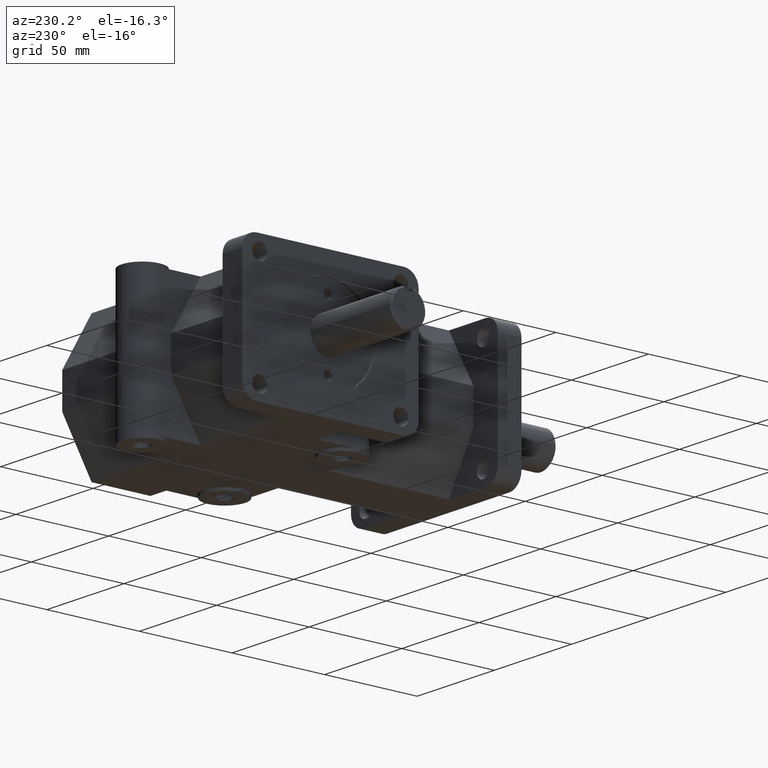
[diagram: clean part render]
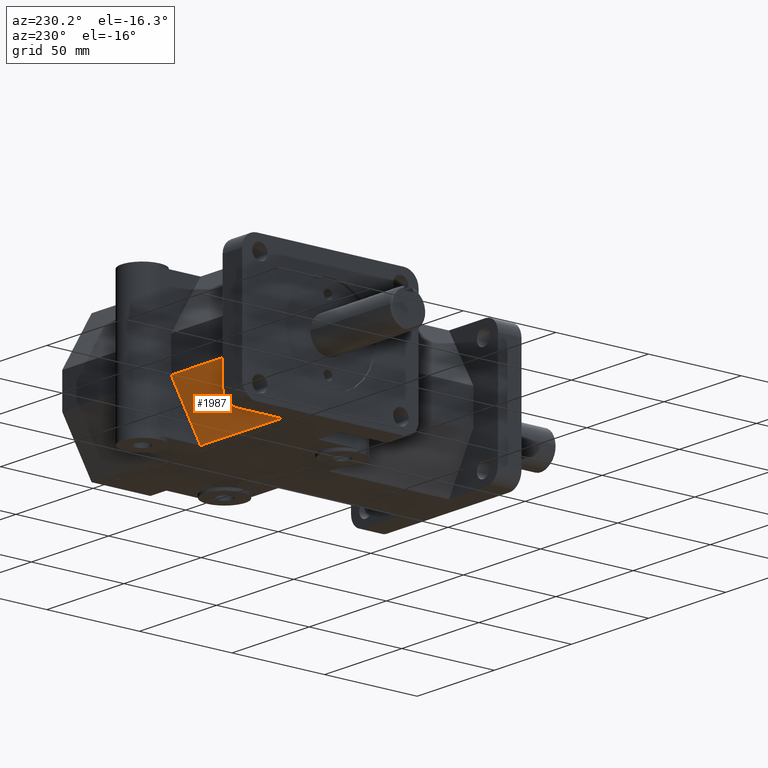
[diagram: same view with one face highlighted and labeled with its STEP entity id]
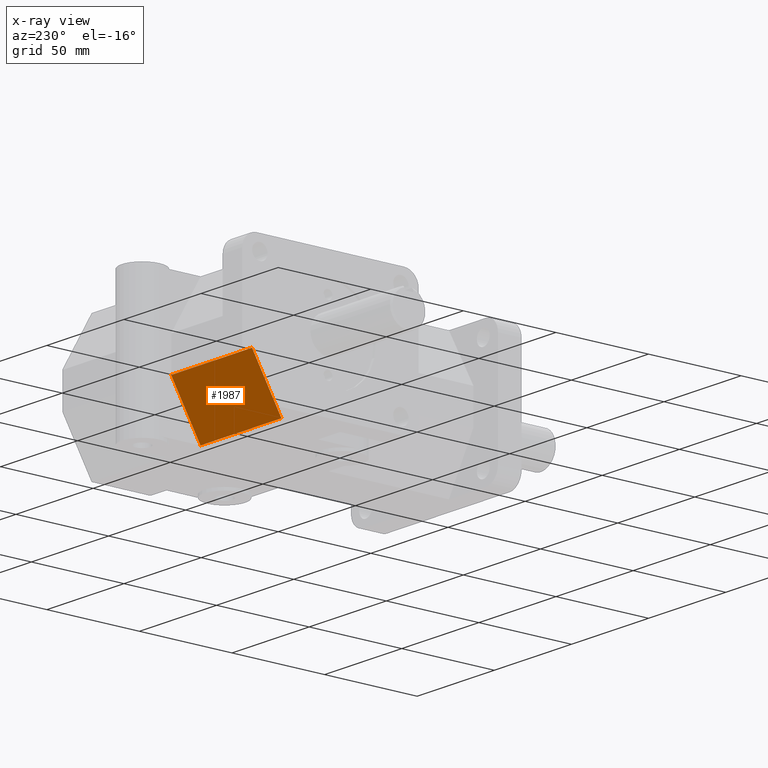
[diagram: x-ray of the same camera — body ghosted, the highlighted face saturated]
A machine part, auxiliary view. The second image highlights one B-rep face of the part: STEP entity #1987.
The next image is the same camera in x-ray: the body ghosted, the highlighted face saturated — about 5% of this face is hidden behind the body in this view.
In plain terms, the highlighted planar face has unit normal (0, 0.866, -0.5).
Its self-contained STEP definition (entity closure, byte-faithful):
#44=LINE('',#2931,#235);
#75=LINE('',#3012,#266);
#184=LINE('',#3322,#375);
#185=LINE('',#3323,#376);
#235=VECTOR('',#2344,1.);
#266=VECTOR('',#2409,1.);
#375=VECTOR('',#2706,1.);
#376=VECTOR('',#2707,1.);
#550=FACE_OUTER_BOUND('',#686,.T.);
#686=EDGE_LOOP('',(#1676,#1677,#1678,#1679));
#862=VERTEX_POINT('',#2928);
#863=VERTEX_POINT('',#2930);
#896=VERTEX_POINT('',#3011);
#991=VERTEX_POINT('',#3321);
#1051=EDGE_CURVE('',#863,#862,#44,.F.);
#1095=EDGE_CURVE('',#896,#863,#75,.T.);
#1244=EDGE_CURVE('',#991,#896,#184,.F.);
#1245=EDGE_CURVE('',#862,#991,#185,.T.);
#1676=ORIENTED_EDGE('',*,*,#1244,.T.);
#1677=ORIENTED_EDGE('',*,*,#1095,.T.);
#1678=ORIENTED_EDGE('',*,*,#1051,.T.);
#1679=ORIENTED_EDGE('',*,*,#1245,.T.);
#1885=PLANE('',#2190);
#1987=ADVANCED_FACE('',(#550),#1885,.T.);
#2190=AXIS2_PLACEMENT_3D('',#3320,#2704,#2705);
#2344=DIRECTION('',(0.,-0.500000607857109,-0.866025052837689));
#2409=DIRECTION('',(-1.,0.,0.));
#2704=DIRECTION('center_axis',(0.,0.866025052837689,-0.500000607857109));
#2705=DIRECTION('ref_axis',(0.,-0.500000607857109,-0.866025052837689));
#2706=DIRECTION('',(0.,0.500000607857109,0.866025052837689));
#2707=DIRECTION('',(1.,0.,0.));
#2928=CARTESIAN_POINT('',(-2.5,6.25,-0.35497));
#2930=CARTESIAN_POINT('',(-2.5,5.625,-1.4375));
#2931=CARTESIAN_POINT('',(-2.5,6.17060332168301,-0.492488857885585));
#3011=CARTESIAN_POINT('',(-0.4375,5.625,-1.4375));
#3012=CARTESIAN_POINT('',(-0.21875,5.625,-1.4375));
#3320=CARTESIAN_POINT('Origin',(-0.21875,5.9375,-0.896235));
#3321=CARTESIAN_POINT('',(-0.4375,6.25,-0.35497));
#3322=CARTESIAN_POINT('',(-0.4375,6.20185339766519,-0.438362226280793));
#3323=CARTESIAN_POINT('',(-0.21875,6.25,-0.35497));